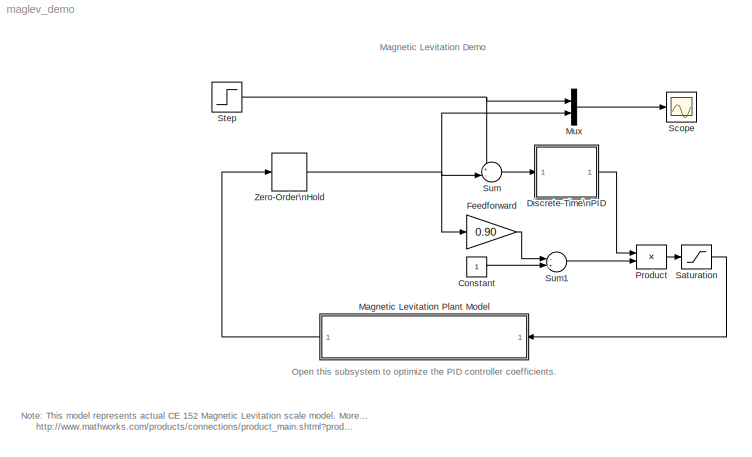
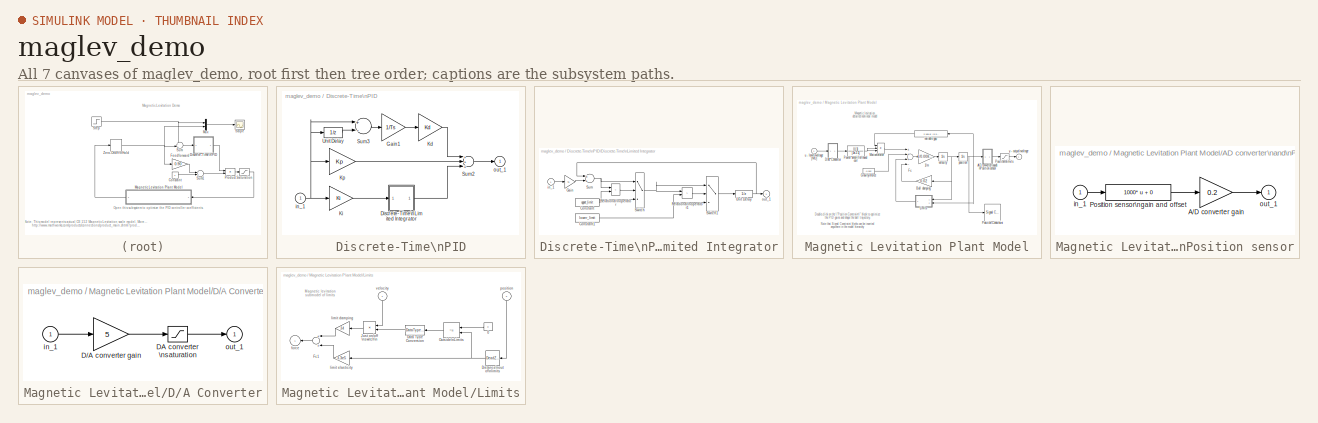
[diagram: thumbnail index - all 7 canvases of the model, root first then tree order]
MODEL maglev_demo
KIND model
CONFIG PreLoadFcn = load maglev_demo
BLOCK [Constant] Constant
BLOCK [SubSystem] Discrete-Time\nPID
  MaskCallbackString = |||
  MaskDescription = Discrete-time PID controller with limited integrator
  MaskDisplay = disp('PID');
  MaskEnableString = on,on,on,on
  MaskIconFrame = on
  MaskIconOpaque = on
  MaskIconRotate = none
  MaskIconUnits = autoscale
  MaskPromptString = Kp:|Ki:|Kd:|Sample time:
  MaskStyleString = edit,edit,edit,edit
  MaskTabNameString = ,,,
  MaskToolTipString = on,on,on,on
  MaskTunableValueString = on,on,on,on
  MaskType = PID
  MaskValueString = Kp|Ki|Kd|Ts
  MaskVarAliasString = ,,,
  MaskVariables = Kp=@1;Ki=@2;Kd=@3;Ts=@4;
  MaskVisibilityString = on,on,on,on
  MinAlgLoopOccurrences = off
  Ports = [1, 1]
  PropExecContextAcrossSSBoundary = on
  RTWSystemCode = Auto
  TreatAsAtomicUnit = off
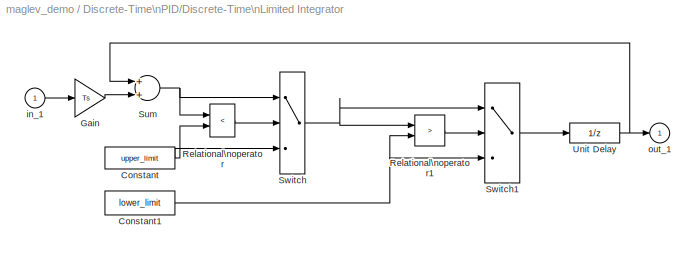
BLOCK [SubSystem] Discrete-Time\nPID/Discrete-Time\nLimited Integrator
  MaskCallbackString = |||
  MaskDescription = Discrete-Time Limited Integrator.
  MaskDisplay = plot(-1,-0.2,3.5,1.2,[0,1,2,2.9],[0,0,1,1],[0,1],[0.5,0.5], [.5,.5], [.8,.6], [.05,.35,.05,.35],[.4,.4,.2,.2], [.45,.65],[.3,.3], [.9,.9],[.2,.4]);
  MaskEnableString = on,on,on,on
  MaskHelp = Discrete-Time Limited Integrator. Unmask to see details.
  MaskIconFrame = on
  MaskIconOpaque = on
  MaskIconRotate = none
  MaskIconUnits = autoscale
  MaskInitialization = lower_limit=@1;upper_limit=@2;X0=@3;Ts=@4;
  MaskPromptString = Lower bound:|Upper bound:|Initial condition:|Sampling Time:
  MaskStyleString = edit,edit,edit,edit
  MaskTabNameString = ,,,
  MaskToolTipString = on,on,on,on
  MaskTunableValueString = on,on,on,on
  MaskType = Discrete-Time Limited Integrator.
  MaskValueString = 0|2|0|Ts
  MaskVarAliasString = ,,,
  MaskVisibilityString = on,on,on,on
  MinAlgLoopOccurrences = off
  Ports = [1, 1]
  PropExecContextAcrossSSBoundary = on
  RTWSystemCode = Auto
  ShowPortLabels = off
  TreatAsAtomicUnit = off
BLOCK [Constant] Discrete-Time\nPID/Discrete-Time\nLimited Integrator/Constant
  Value = upper_limit
BLOCK [Constant] Discrete-Time\nPID/Discrete-Time\nLimited Integrator/Constant1
  Value = lower_limit
BLOCK [Gain] Discrete-Time\nPID/Discrete-Time\nLimited Integrator/Gain
  Gain = Ts
BLOCK [RelationalOperator] Discrete-Time\nPID/Discrete-Time\nLimited Integrator/Relational\noperator
  Operator = <
BLOCK [RelationalOperator] Discrete-Time\nPID/Discrete-Time\nLimited Integrator/Relational\noperator1
  Operator = >
BLOCK [Sum] Discrete-Time\nPID/Discrete-Time\nLimited Integrator/Sum
  Ports = [2, 1]
BLOCK [Switch] Discrete-Time\nPID/Discrete-Time\nLimited Integrator/Switch
  SaturateOnIntegerOverflow = off
  Threshold = 0.5
BLOCK [Switch] Discrete-Time\nPID/Discrete-Time\nLimited Integrator/Switch1
  SaturateOnIntegerOverflow = off
  Threshold = 0.5
BLOCK [UnitDelay] Discrete-Time\nPID/Discrete-Time\nLimited Integrator/Unit Delay
  SampleTime = Ts
  X0 = X0
BLOCK [Inport] Discrete-Time\nPID/Discrete-Time\nLimited Integrator/in_1
  IconDisplay = Port number
  LatchInput = off
BLOCK [Outport] Discrete-Time\nPID/Discrete-Time\nLimited Integrator/out_1
  BusOutputAsStruct = off
  IconDisplay = Port number
  InitialOutput = 0
BLOCK [Gain] Discrete-Time\nPID/Gain1
  Gain = 1/Ts
BLOCK [Gain] Discrete-Time\nPID/Kd
  Gain = Kd
BLOCK [Gain] Discrete-Time\nPID/Ki
  Gain = Ki
BLOCK [Gain] Discrete-Time\nPID/Kp
  Gain = Kp
BLOCK [Sum] Discrete-Time\nPID/Sum2
  Inputs = +++
  Ports = [3, 1]
BLOCK [Sum] Discrete-Time\nPID/Sum3
  Inputs = +-
  Ports = [2, 1]
BLOCK [UnitDelay] Discrete-Time\nPID/Unit Delay
  SampleTime = Ts
BLOCK [Inport] Discrete-Time\nPID/in_1
  IconDisplay = Port number
  LatchInput = off
BLOCK [Outport] Discrete-Time\nPID/out_1
  BusOutputAsStruct = off
  IconDisplay = Port number
  InitialOutput = 0
BLOCK [Gain] Feedforward
  Gain = 0.90
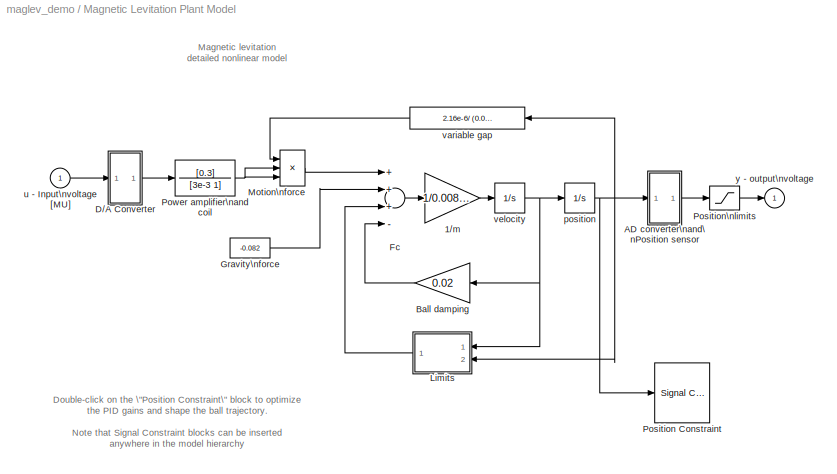
BLOCK [SubSystem] Magnetic Levitation Plant Model
  MinAlgLoopOccurrences = off
  Ports = [1, 1]
  PropExecContextAcrossSSBoundary = on
  RTWSystemCode = Auto
  TreatAsAtomicUnit = off
BLOCK [Gain] Magnetic Levitation Plant Model/1//m
  Gain = 1/0.00837
BLOCK [SubSystem] Magnetic Levitation Plant Model/AD converter\nand\nPosition sensor
  MaskDisplay = disp('A/D')
  MaskIconFrame = on
  MaskIconOpaque = on
  MaskIconRotate = none
  MaskIconUnits = autoscale
  MinAlgLoopOccurrences = off
  Ports = [1, 1]
  PropExecContextAcrossSSBoundary = on
  RTWSystemCode = Auto
  ShowPortLabels = off
  TreatAsAtomicUnit = off
BLOCK [Gain] Magnetic Levitation Plant Model/AD converter\nand\nPosition sensor/A//D converter gain
  Gain = 0.2
BLOCK [Fcn] Magnetic Levitation Plant Model/AD converter\nand\nPosition sensor/Position sensor\ngain and offset
  Expr = 1000* u + 0
BLOCK [Inport] Magnetic Levitation Plant Model/AD converter\nand\nPosition sensor/in_1
  IconDisplay = Port number
  LatchInput = off
BLOCK [Outport] Magnetic Levitation Plant Model/AD converter\nand\nPosition sensor/out_1
  BusOutputAsStruct = off
  IconDisplay = Port number
BLOCK [Gain] Magnetic Levitation Plant Model/Ball damping
  Gain = 0.02
BLOCK [SubSystem] Magnetic Levitation Plant Model/D//A Converter
  MaskDisplay = disp('D/A')
  MaskIconFrame = on
  MaskIconOpaque = on
  MaskIconRotate = none
  MaskIconUnits = autoscale
  MinAlgLoopOccurrences = off
  Ports = [1, 1]
  PropExecContextAcrossSSBoundary = on
  RTWSystemCode = Auto
  ShowPortLabels = off
  TreatAsAtomicUnit = off
BLOCK [Gain] Magnetic Levitation Plant Model/D//A Converter/D//A converter gain
  Gain = 5
BLOCK [Saturate] Magnetic Levitation Plant Model/D//A Converter/DA converter \nsaturation
  LowerLimit = -5
  UpperLimit = 5
  ZeroCross = off
BLOCK [Inport] Magnetic Levitation Plant Model/D//A Converter/in_1
  IconDisplay = Port number
  LatchInput = off
BLOCK [Outport] Magnetic Levitation Plant Model/D//A Converter/out_1
  BusOutputAsStruct = off
  IconDisplay = Port number
BLOCK [Sum] Magnetic Levitation Plant Model/Fc
  Inputs = +++-
  Ports = [4, 1]
BLOCK [Constant] Magnetic Levitation Plant Model/Gravity\nforce
  Value = -0.082
BLOCK [SubSystem] Magnetic Levitation Plant Model/Limits
  MaskDisplay = disp('LIMIT')
  MaskIconFrame = on
  MaskIconOpaque = on
  MaskIconRotate = none
  MaskIconUnits = autoscale
  MinAlgLoopOccurrences = off
  Ports = [2, 1]
  PropExecContextAcrossSSBoundary = on
  RTWSystemCode = Auto
  ShowPortLabels = off
  TreatAsAtomicUnit = off
BLOCK [Constant] Magnetic Levitation Plant Model/Limits/0
  Value = 0
BLOCK [DataTypeConversion] Magnetic Levitation Plant Model/Limits/Data Type Conversion
  OutDataTypeMode = double
BLOCK [DeadZone] Magnetic Levitation Plant Model/Limits/Distance\nout of\nlimits
  LowerValue = 0
  UpperValue = 0.005
  ZeroCross = off
BLOCK [Sum] Magnetic Levitation Plant Model/Limits/Fc1
  Ports = [2, 1]
BLOCK [Product] Magnetic Levitation Plant Model/Limits/Just on//off \nswitch\n
  Ports = [2, 1]
  RndMeth = Floor
BLOCK [RelationalOperator] Magnetic Levitation Plant Model/Limits/Outside\nLimits
  Operator = ~=
BLOCK [Outport] Magnetic Levitation Plant Model/Limits/force
  BusOutputAsStruct = off
  IconDisplay = Port number
BLOCK [Gain] Magnetic Levitation Plant Model/Limits/limit damping
  Gain = 34
BLOCK [Gain] Magnetic Levitation Plant Model/Limits/limit elasticity
  Gain = 3.3e5
BLOCK [Inport] Magnetic Levitation Plant Model/Limits/position
  IconDisplay = Port number
  LatchInput = off
  Port = 2
BLOCK [Inport] Magnetic Levitation Plant Model/Limits/velocity
  IconDisplay = Port number
  LatchInput = off
BLOCK [Product] Magnetic Levitation Plant Model/Motion\nforce
  Inputs = 3
  Ports = [3, 1]
  RndMeth = Floor
BLOCK [Reference] Magnetic Levitation Plant Model/Position Constraint  REF=srolib/Signal Constraint  (lib defined in mdl_d992e5ea460a)
  DialogPosition = [0.0109375 0.21875 0.45 0.3095703125]
  LogID = SRO_DataLog_1
  Ports = [1]
  SaveAs = maglev_optim
  SaveIn = workspace
  ShowPortLabels = on
  SourceBlock = srolib/Signal Constraint
  SourceType = Signal Constraint
BLOCK [Saturate] Magnetic Levitation Plant Model/Position\nlimits
  LowerLimit = 0
  UpperLimit = 0.998
  ZeroCross = off
BLOCK [TransferFcn] Magnetic Levitation Plant Model/Power amplifier\nand coil
  Denominator = [3e-3 1]
  Numerator = [0.3]
BLOCK [Integrator] Magnetic Levitation Plant Model/position
  LimitOutput = on
  LowerSaturationLimit = 0
  Ports = [1, 1]
  UpperSaturationLimit = 0.005
  ZeroCross = off
BLOCK [Inport] Magnetic Levitation Plant Model/u - Input\nvoltage [MU]
  IconDisplay = Port number
  LatchInput = off
BLOCK [Fcn] Magnetic Levitation Plant Model/variable gap
  Expr = 2.16e-6/ (0.006 - u)^2
BLOCK [Integrator] Magnetic Levitation Plant Model/velocity
  Ports = [1, 1]
  ZeroCross = off
BLOCK [Outport] Magnetic Levitation Plant Model/y - output\nvoltage
  BusOutputAsStruct = off
  IconDisplay = Port number
BLOCK [Mux] Mux
  DisplayOption = bar
  Inputs = 2
  Ports = [2, 1]
BLOCK [Product] Product
  Ports = [2, 1]
  RndMeth = Floor
BLOCK [Saturate] Saturation
  LowerLimit = 0
  UpperLimit = 1
  ZeroCross = off
BLOCK [Scope] Scope
  DataFormat = StructureWithTime
  ExtModeUploadOption = log
  LimitDataPoints = off
  MaxDataPoints = 250
  NumInputPorts = 1
  Ports = [1]
  SampleInput = on
  SampleTime = 0.02
  SaveToWorkspace = on
  TimeRange = 5
  YMax = 1.027
  YMin = -0.0227122
  ZoomMode = yonly
BLOCK [Step] Step
  SampleTime = 0
  Time = 0
BLOCK [Sum] Sum
  IconShape = round
  Inputs = +-|
  Ports = [2, 1]
BLOCK [Sum] Sum1
  Inputs = -+
  Ports = [2, 1]
BLOCK [ZeroOrderHold] Zero-Order\nHold
  SampleTime = Ts
ANNOTATION (root): Magnetic Levitation Demo
ANNOTATION (root): Note: This model represents actual CE 152 Magnetic Levitation scale model. More information can be found at:\n http://www.mathworks.com/products/connections/product_main.shtml?prod_id=176
ANNOTATION (root): Open this subsystem to optimize the PID controller coefficients.
ANNOTATION Magnetic Levitation Plant Model: Double-click on the \"Position Constraint\" block to optimize\nthe PID gains and shape the ball trajectory.\n\nNote that Signal Constraint blocks can be inserted \nanywhere in the model hierarchy
ANNOTATION Magnetic Levitation Plant Model: Magnetic levitation \ndetailed nonlinear model
ANNOTATION Magnetic Levitation Plant Model/Limits: Magnetic levitation \nsubmodel of limits
LINE Constant:1 -> Sum1:2
NET Discrete-Time\nPID/Discrete-Time\nLimited Integrator/Constant1:1 -> Discrete-Time\nPID/Discrete-Time\nLimited Integrator/Relational\noperator1:2, Discrete-Time\nPID/Discrete-Time\nLimited Integrator/Switch1:3
NET Discrete-Time\nPID/Discrete-Time\nLimited Integrator/Constant:1 -> Discrete-Time\nPID/Discrete-Time\nLimited Integrator/Relational\noperator:2, Discrete-Time\nPID/Discrete-Time\nLimited Integrator/Switch:3
LINE Discrete-Time\nPID/Discrete-Time\nLimited Integrator/Gain:1 -> Discrete-Time\nPID/Discrete-Time\nLimited Integrator/Sum:2
LINE Discrete-Time\nPID/Discrete-Time\nLimited Integrator/Relational\noperator1:1 -> Discrete-Time\nPID/Discrete-Time\nLimited Integrator/Switch1:2
LINE Discrete-Time\nPID/Discrete-Time\nLimited Integrator/Relational\noperator:1 -> Discrete-Time\nPID/Discrete-Time\nLimited Integrator/Switch:2
NET Discrete-Time\nPID/Discrete-Time\nLimited Integrator/Sum:1 -> Discrete-Time\nPID/Discrete-Time\nLimited Integrator/Relational\noperator:1, Discrete-Time\nPID/Discrete-Time\nLimited Integrator/Switch:1
LINE Discrete-Time\nPID/Discrete-Time\nLimited Integrator/Switch1:1 -> Discrete-Time\nPID/Discrete-Time\nLimited Integrator/Unit Delay:1
NET Discrete-Time\nPID/Discrete-Time\nLimited Integrator/Switch:1 -> Discrete-Time\nPID/Discrete-Time\nLimited Integrator/Relational\noperator1:1, Discrete-Time\nPID/Discrete-Time\nLimited Integrator/Switch1:1
NET Discrete-Time\nPID/Discrete-Time\nLimited Integrator/Unit Delay:1 -> Discrete-Time\nPID/Discrete-Time\nLimited Integrator/Sum:1, Discrete-Time\nPID/Discrete-Time\nLimited Integrator/out_1:1
LINE Discrete-Time\nPID/Discrete-Time\nLimited Integrator/in_1:1 -> Discrete-Time\nPID/Discrete-Time\nLimited Integrator/Gain:1
LINE Discrete-Time\nPID/Discrete-Time\nLimited Integrator:1 -> Discrete-Time\nPID/Sum2:3
LINE Discrete-Time\nPID/Gain1:1 -> Discrete-Time\nPID/Kd:1
LINE Discrete-Time\nPID/Kd:1 -> Discrete-Time\nPID/Sum2:1
LINE Discrete-Time\nPID/Ki:1 -> Discrete-Time\nPID/Discrete-Time\nLimited Integrator:1
LINE Discrete-Time\nPID/Kp:1 -> Discrete-Time\nPID/Sum2:2
LINE Discrete-Time\nPID/Sum2:1 -> Discrete-Time\nPID/out_1:1
LINE Discrete-Time\nPID/Sum3:1 -> Discrete-Time\nPID/Gain1:1
LINE Discrete-Time\nPID/Unit Delay:1 -> Discrete-Time\nPID/Sum3:2
NET Discrete-Time\nPID/in_1:1 -> Discrete-Time\nPID/Ki:1, Discrete-Time\nPID/Kp:1, Discrete-Time\nPID/Sum3:1, Discrete-Time\nPID/Unit Delay:1
LINE Discrete-Time\nPID:1 -> Product:1
LINE Feedforward:1 -> Sum1:1
LINE Magnetic Levitation Plant Model/1//m:1 -> Magnetic Levitation Plant Model/velocity:1
LINE Magnetic Levitation Plant Model/AD converter\nand\nPosition sensor/A//D converter gain:1 -> Magnetic Levitation Plant Model/AD converter\nand\nPosition sensor/out_1:1
LINE Magnetic Levitation Plant Model/AD converter\nand\nPosition sensor/Position sensor\ngain and offset:1 -> Magnetic Levitation Plant Model/AD converter\nand\nPosition sensor/A//D converter gain:1
LINE Magnetic Levitation Plant Model/AD converter\nand\nPosition sensor/in_1:1 -> Magnetic Levitation Plant Model/AD converter\nand\nPosition sensor/Position sensor\ngain and offset:1
LINE Magnetic Levitation Plant Model/AD converter\nand\nPosition sensor:1 -> Magnetic Levitation Plant Model/Position\nlimits:1
LINE Magnetic Levitation Plant Model/Ball damping:1 -> Magnetic Levitation Plant Model/Fc:4
LINE Magnetic Levitation Plant Model/D//A Converter/D//A converter gain:1 -> Magnetic Levitation Plant Model/D//A Converter/DA converter \nsaturation:1
LINE Magnetic Levitation Plant Model/D//A Converter/DA converter \nsaturation:1 -> Magnetic Levitation Plant Model/D//A Converter/out_1:1
LINE Magnetic Levitation Plant Model/D//A Converter/in_1:1 -> Magnetic Levitation Plant Model/D//A Converter/D//A converter gain:1
LINE Magnetic Levitation Plant Model/D//A Converter:1 -> Magnetic Levitation Plant Model/Power amplifier\nand coil:1
LINE Magnetic Levitation Plant Model/Fc:1 -> Magnetic Levitation Plant Model/1//m:1
LINE Magnetic Levitation Plant Model/Gravity\nforce:1 -> Magnetic Levitation Plant Model/Fc:2
LINE Magnetic Levitation Plant Model/Limits/0:1 -> Magnetic Levitation Plant Model/Limits/Outside\nLimits:1
LINE Magnetic Levitation Plant Model/Limits/Data Type Conversion:1 -> Magnetic Levitation Plant Model/Limits/Just on//off \nswitch\n:2
NET Magnetic Levitation Plant Model/Limits/Distance\nout of\nlimits:1 -> Magnetic Levitation Plant Model/Limits/Outside\nLimits:2, Magnetic Levitation Plant Model/Limits/limit elasticity:1
LINE Magnetic Levitation Plant Model/Limits/Fc1:1 -> Magnetic Levitation Plant Model/Limits/force:1
LINE Magnetic Levitation Plant Model/Limits/Just on//off \nswitch\n:1 -> Magnetic Levitation Plant Model/Limits/limit damping:1
LINE Magnetic Levitation Plant Model/Limits/Outside\nLimits:1 -> Magnetic Levitation Plant Model/Limits/Data Type Conversion:1
LINE Magnetic Levitation Plant Model/Limits/limit damping:1 -> Magnetic Levitation Plant Model/Limits/Fc1:1
LINE Magnetic Levitation Plant Model/Limits/limit elasticity:1 -> Magnetic Levitation Plant Model/Limits/Fc1:2
LINE Magnetic Levitation Plant Model/Limits/position:1 -> Magnetic Levitation Plant Model/Limits/Distance\nout of\nlimits:1
LINE Magnetic Levitation Plant Model/Limits/velocity:1 -> Magnetic Levitation Plant Model/Limits/Just on//off \nswitch\n:1
LINE Magnetic Levitation Plant Model/Limits:1 -> Magnetic Levitation Plant Model/Fc:3
LINE Magnetic Levitation Plant Model/Motion\nforce:1 -> Magnetic Levitation Plant Model/Fc:1
LINE Magnetic Levitation Plant Model/Position\nlimits:1 -> Magnetic Levitation Plant Model/y - output\nvoltage:1
NET Magnetic Levitation Plant Model/Power amplifier\nand coil:1 -> Magnetic Levitation Plant Model/Motion\nforce:2, Magnetic Levitation Plant Model/Motion\nforce:3
NET Magnetic Levitation Plant Model/position:1 -> Magnetic Levitation Plant Model/AD converter\nand\nPosition sensor:1, Magnetic Levitation Plant Model/Limits:2, Magnetic Levitation Plant Model/Position Constraint:1, Magnetic Levitation Plant Model/variable gap:1
LINE Magnetic Levitation Plant Model/u - Input\nvoltage [MU]:1 -> Magnetic Levitation Plant Model/D//A Converter:1
LINE Magnetic Levitation Plant Model/variable gap:1 -> Magnetic Levitation Plant Model/Motion\nforce:1
NET Magnetic Levitation Plant Model/velocity:1 -> Magnetic Levitation Plant Model/Ball damping:1, Magnetic Levitation Plant Model/Limits:1, Magnetic Levitation Plant Model/position:1
LINE Magnetic Levitation Plant Model:1 -> Zero-Order\nHold:1
LINE Mux:1 -> Scope:1
LINE Product:1 -> Saturation:1
LINE Saturation:1 -> Magnetic Levitation Plant Model:1
NET Step:1 -> Mux:1, Sum:1
LINE Sum1:1 -> Product:2
LINE Sum:1 -> Discrete-Time\nPID:1
NET Zero-Order\nHold:1 -> Feedforward:1, Mux:2, Sum:2
note: NET lines group one-source signal fan-out (src -> all destinations, sorted); 1:1 wires keep LINE
